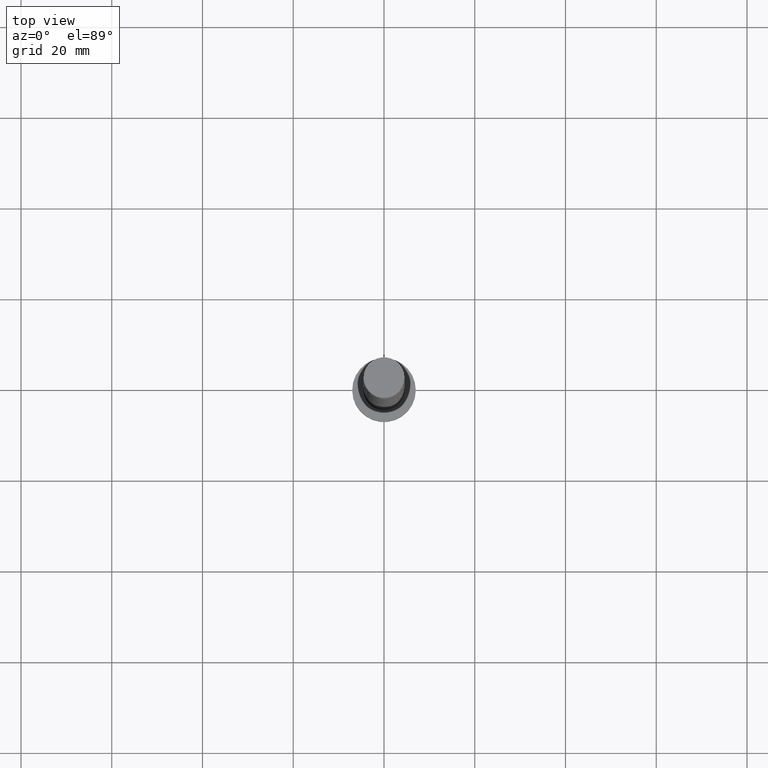
[diagram: clean part render]
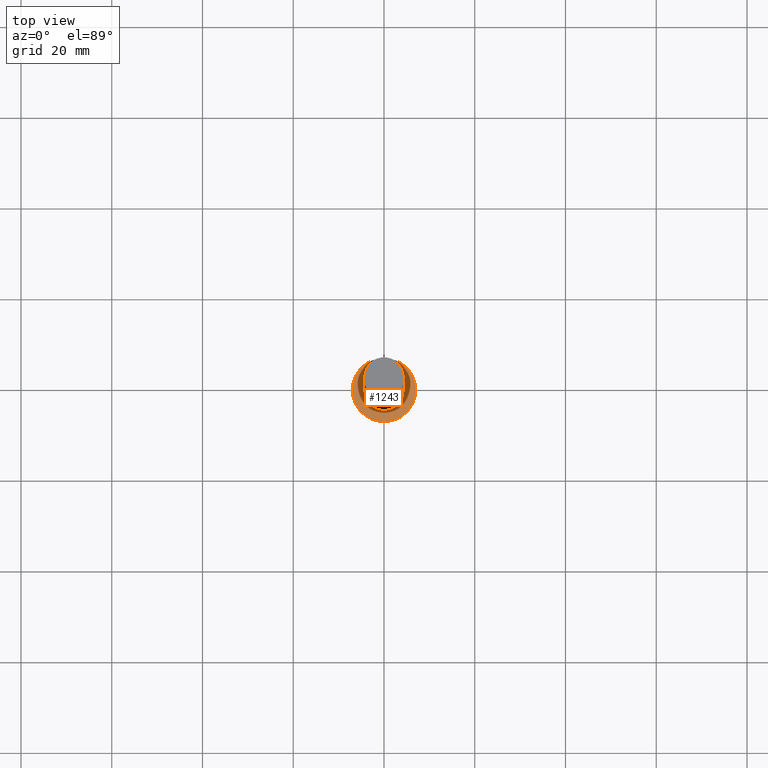
[diagram: same view with one face highlighted and labeled with its STEP entity id]
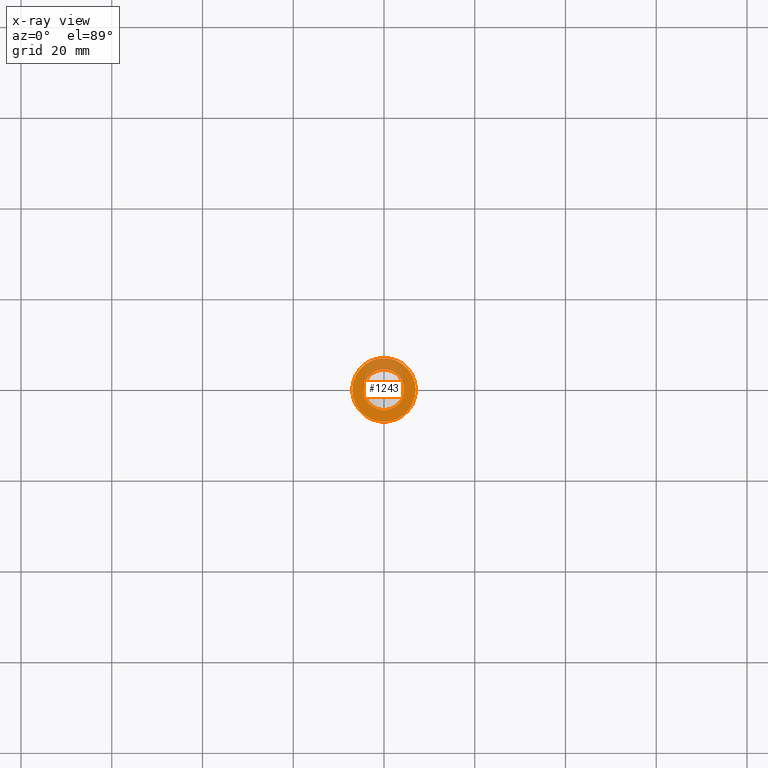
[diagram: x-ray of the same camera — body ghosted, the highlighted face saturated]
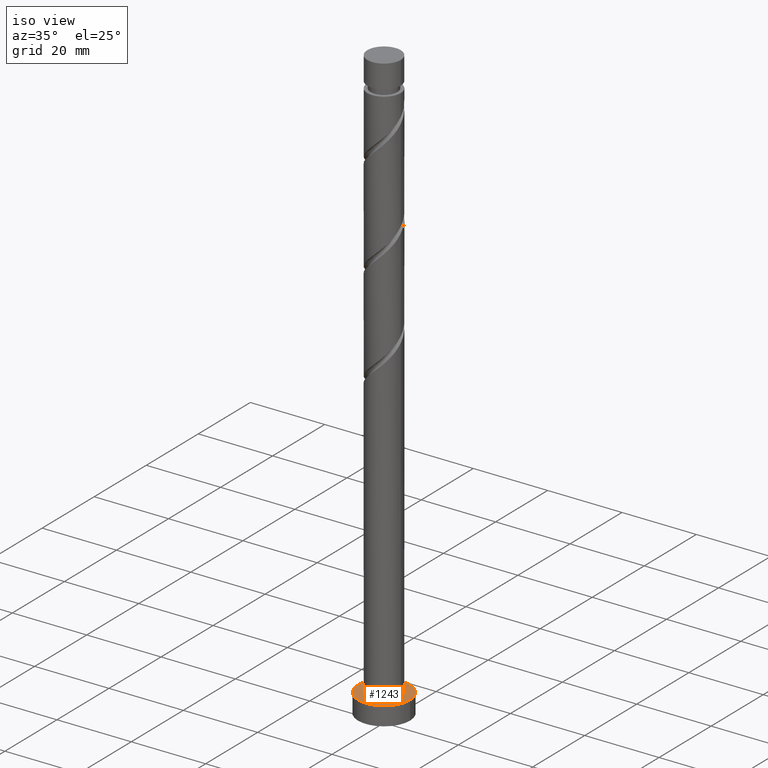
[diagram: same view with one face highlighted and labeled with its STEP entity id]
A machine part, top view. The second image highlights one B-rep face of the part: STEP entity #1243.
The next image is the same camera in x-ray: the body ghosted, the highlighted face saturated — about 27% of this face is hidden behind the body in this view.
A second angle (iso view) of the same face is appended — the face is thin or edge-on in the first view.
In plain terms, the highlighted planar face has unit normal (0, 0, 1).
Its self-contained STEP definition (entity closure, byte-faithful):
#111 = EDGE_CURVE ( 'NONE', #1170, #1331, #1074, .T. ) ;
#140 = CARTESIAN_POINT ( 'NONE',  ( 0.000000000000000000, 0.000000000000000000, 5.000000000000000000 ) ) ;
#146 = DIRECTION ( 'NONE',  ( 1.000000000000000000, 0.000000000000000000, 0.000000000000000000 ) ) ;
#156 = DIRECTION ( 'NONE',  ( 0.000000000000000000, 0.000000000000000000, 1.000000000000000000 ) ) ;
#185 = AXIS2_PLACEMENT_3D ( 'NONE', #1563, #156, #1057 ) ;
#235 = CARTESIAN_POINT ( 'NONE',  ( -4.500000000000000000, 0.000000000000000000, 5.000000000000000000 ) ) ;
#248 = EDGE_CURVE ( 'NONE', #1331, #1170, #1451, .T. ) ;
#267 = AXIS2_PLACEMENT_3D ( 'NONE', #989, #853, #487 ) ;
#286 = CARTESIAN_POINT ( 'NONE',  ( 0.000000000000000000, 0.000000000000000000, 5.000000000000000000 ) ) ;
#477 = CIRCLE ( 'NONE', #267, 7.000000000000000000 ) ;
#487 = DIRECTION ( 'NONE',  ( 1.000000000000000000, 0.000000000000000000, 0.000000000000000000 ) ) ;
#605 = AXIS2_PLACEMENT_3D ( 'NONE', #1259, #1536, #617 ) ;
#609 = VERTEX_POINT ( 'NONE', #862 ) ;
#617 = DIRECTION ( 'NONE',  ( 1.000000000000000000, 0.000000000000000000, -0.000000000000000000 ) ) ;
#624 = FACE_BOUND ( 'NONE', #1184, .T. ) ;
#640 = DIRECTION ( 'NONE',  ( 0.000000000000000000, 0.000000000000000000, 1.000000000000000000 ) ) ;
#663 = ORIENTED_EDGE ( 'NONE', *, *, #1520, .T. ) ;
#707 = EDGE_CURVE ( 'NONE', #609, #1306, #477, .T. ) ;
#853 = DIRECTION ( 'NONE',  ( 0.000000000000000000, 0.000000000000000000, 1.000000000000000000 ) ) ;
#862 = CARTESIAN_POINT ( 'NONE',  ( -7.000000000000000000, 0.000000000000000000, 5.000000000000000000 ) ) ;
#882 = CIRCLE ( 'NONE', #1042, 7.000000000000000000 ) ;
#989 = CARTESIAN_POINT ( 'NONE',  ( 0.000000000000000000, 0.000000000000000000, 5.000000000000000000 ) ) ;
#992 = PLANE ( 'NONE',  #605 ) ;
#1008 = CARTESIAN_POINT ( 'NONE',  ( 7.000000000000000000, 8.572527594031473190E-16, 5.000000000000000000 ) ) ;
#1042 = AXIS2_PLACEMENT_3D ( 'NONE', #140, #640, #1166 ) ;
#1057 = DIRECTION ( 'NONE',  ( 1.000000000000000000, 0.000000000000000000, 0.000000000000000000 ) ) ;
#1074 = CIRCLE ( 'NONE', #185, 4.500000000000000000 ) ;
#1100 = AXIS2_PLACEMENT_3D ( 'NONE', #286, #1429, #146 ) ;
#1166 = DIRECTION ( 'NONE',  ( 1.000000000000000000, 0.000000000000000000, 0.000000000000000000 ) ) ;
#1170 = VERTEX_POINT ( 'NONE', #1492 ) ;
#1184 = EDGE_LOOP ( 'NONE', ( #1193, #1317 ) ) ;
#1193 = ORIENTED_EDGE ( 'NONE', *, *, #248, .F. ) ;
#1243 = ADVANCED_FACE ( 'NONE', ( #624, #1274 ), #992, .T. ) ;
#1259 = CARTESIAN_POINT ( 'NONE',  ( 0.000000000000000000, 0.000000000000000000, 5.000000000000000000 ) ) ;
#1274 = FACE_OUTER_BOUND ( 'NONE', #1402, .T. ) ;
#1306 = VERTEX_POINT ( 'NONE', #1008 ) ;
#1317 = ORIENTED_EDGE ( 'NONE', *, *, #111, .F. ) ;
#1331 = VERTEX_POINT ( 'NONE', #235 ) ;
#1402 = EDGE_LOOP ( 'NONE', ( #1404, #663 ) ) ;
#1404 = ORIENTED_EDGE ( 'NONE', *, *, #707, .T. ) ;
#1429 = DIRECTION ( 'NONE',  ( 0.000000000000000000, 0.000000000000000000, 1.000000000000000000 ) ) ;
#1451 = CIRCLE ( 'NONE', #1100, 4.500000000000000000 ) ;
#1492 = CARTESIAN_POINT ( 'NONE',  ( 4.500000000000000000, 5.510910596163088569E-16, 5.000000000000000000 ) ) ;
#1520 = EDGE_CURVE ( 'NONE', #1306, #609, #882, .T. ) ;
#1536 = DIRECTION ( 'NONE',  ( 0.000000000000000000, 0.000000000000000000, 1.000000000000000000 ) ) ;
#1563 = CARTESIAN_POINT ( 'NONE',  ( 0.000000000000000000, 0.000000000000000000, 5.000000000000000000 ) ) ;